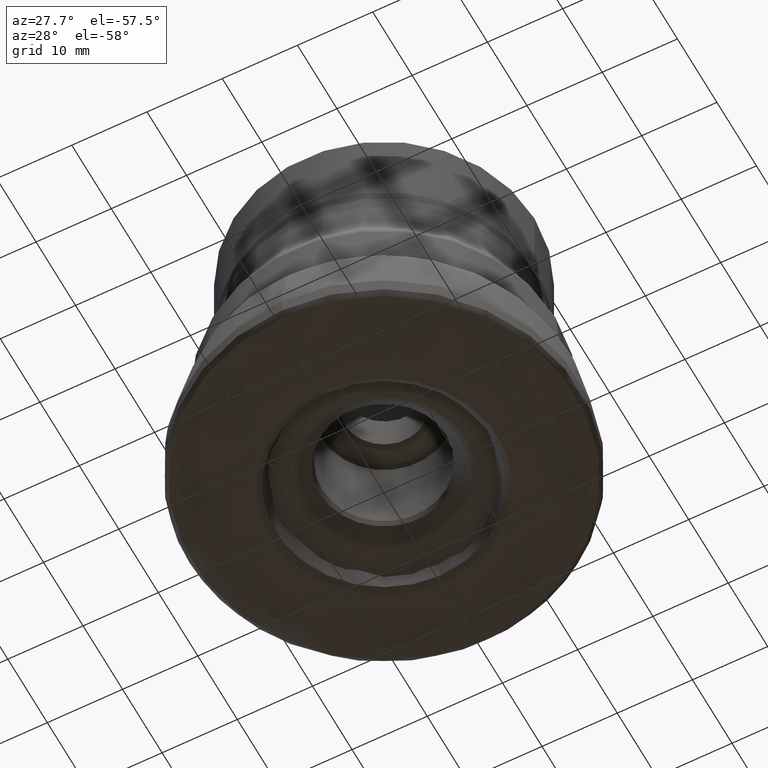
[diagram: clean part render]
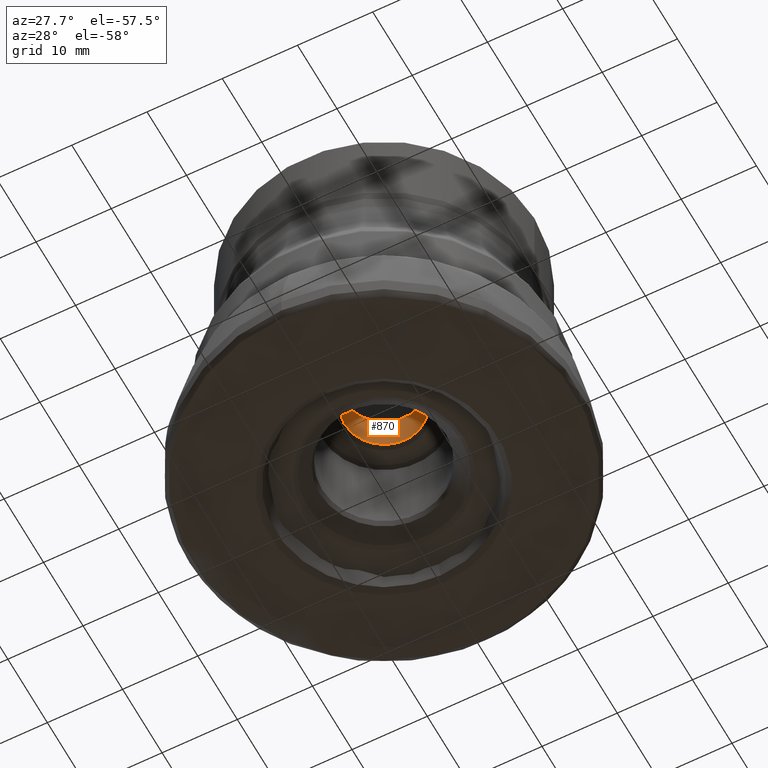
[diagram: same view with one face highlighted and labeled with its STEP entity id]
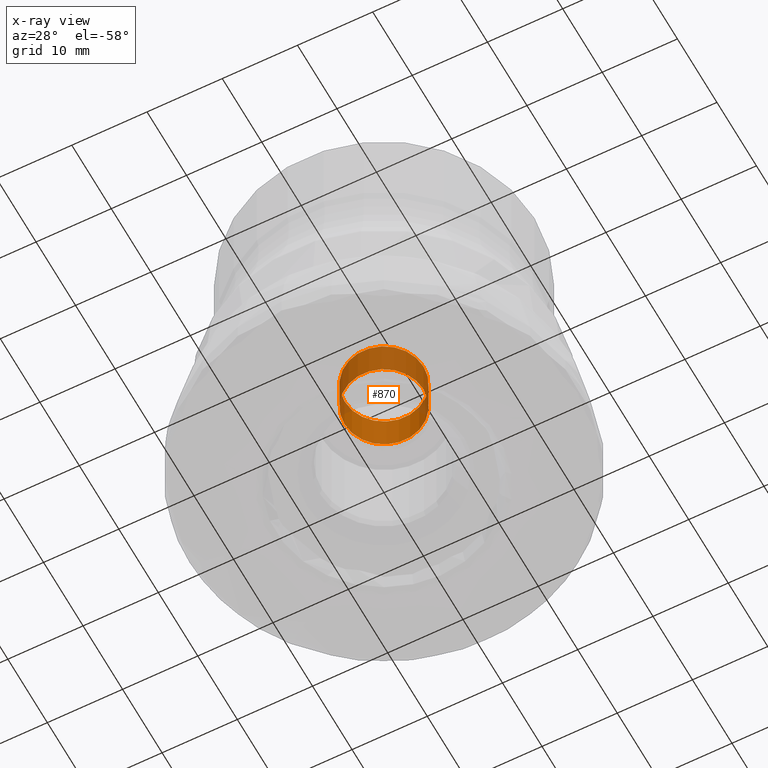
[diagram: x-ray of the same camera — body ghosted, the highlighted face saturated]
A machine part, auxiliary view. The second image highlights one B-rep face of the part: STEP entity #870.
The next image is the same camera in x-ray: the body ghosted, the highlighted face saturated — about 57% of this face is hidden behind the body in this view.
In plain terms, the highlighted cylindrical surface (bore or boss wall) has radius 5.25 mm, axis along (0, 0, -1).
Its self-contained STEP definition (entity closure, byte-faithful):
#184 = CARTESIAN_POINT ( 'NONE',  ( 5.250000000034766000, 0.0000000000000000000, -22.50000000000811400 ) ) ;
#201 = EDGE_LOOP ( 'NONE', ( #226 ) ) ;
#226 = ORIENTED_EDGE ( 'NONE', *, *, #745, .F. ) ;
#368 = DIRECTION ( 'NONE',  ( -0.0000000000000000000, -0.0000000000000000000, 1.000000000000000000 ) ) ;
#526 = ORIENTED_EDGE ( 'NONE', *, *, #1840, .T. ) ;
#693 = VERTEX_POINT ( 'NONE', #2630 ) ;
#745 = EDGE_CURVE ( 'NONE', #839, #839, #2022, .T. ) ;
#746 = DIRECTION ( 'NONE',  ( -0.0000000000000000000, -0.0000000000000000000, 1.000000000000000000 ) ) ;
#839 = VERTEX_POINT ( 'NONE', #184 ) ;
#870 = ADVANCED_FACE ( 'NONE', ( #2865, #1655 ), #1808, .F. ) ;
#939 = DIRECTION ( 'NONE',  ( 1.000000000000000000, 0.0000000000000000000, 0.0000000000000000000 ) ) ;
#1162 = DIRECTION ( 'NONE',  ( -0.0000000000000000000, -0.0000000000000000000, 1.000000000000000000 ) ) ;
#1176 = DIRECTION ( 'NONE',  ( 1.000000000000000000, 0.0000000000000000000, 0.0000000000000000000 ) ) ;
#1463 = AXIS2_PLACEMENT_3D ( 'NONE', #2506, #1162, #939 ) ;
#1590 = CARTESIAN_POINT ( 'NONE',  ( 0.0000000000000000000, 0.0000000000000000000, -17.50000000000811400 ) ) ;
#1655 = FACE_OUTER_BOUND ( 'NONE', #2228, .T. ) ;
#1808 = CYLINDRICAL_SURFACE ( 'NONE', #2796, 5.250000000038626900 ) ;
#1840 = EDGE_CURVE ( 'NONE', #693, #693, #1905, .T. ) ;
#1905 = CIRCLE ( 'NONE', #2932, 5.250000000042487800 ) ;
#2022 = CIRCLE ( 'NONE', #1463, 5.250000000034766000 ) ;
#2228 = EDGE_LOOP ( 'NONE', ( #526 ) ) ;
#2506 = CARTESIAN_POINT ( 'NONE',  ( 0.0000000000000000000, 0.0000000000000000000, -22.50000000000811400 ) ) ;
#2622 = CARTESIAN_POINT ( 'NONE',  ( 0.0000000000000000000, 0.0000000000000000000, -5.271374679283679800 ) ) ;
#2630 = CARTESIAN_POINT ( 'NONE',  ( 5.250000000042487800, 0.0000000000000000000, -17.50000000000811400 ) ) ;
#2796 = AXIS2_PLACEMENT_3D ( 'NONE', #2622, #368, #1176 ) ;
#2852 = DIRECTION ( 'NONE',  ( 1.000000000000000000, 0.0000000000000000000, 0.0000000000000000000 ) ) ;
#2865 = FACE_OUTER_BOUND ( 'NONE', #201, .T. ) ;
#2932 = AXIS2_PLACEMENT_3D ( 'NONE', #1590, #746, #2852 ) ;